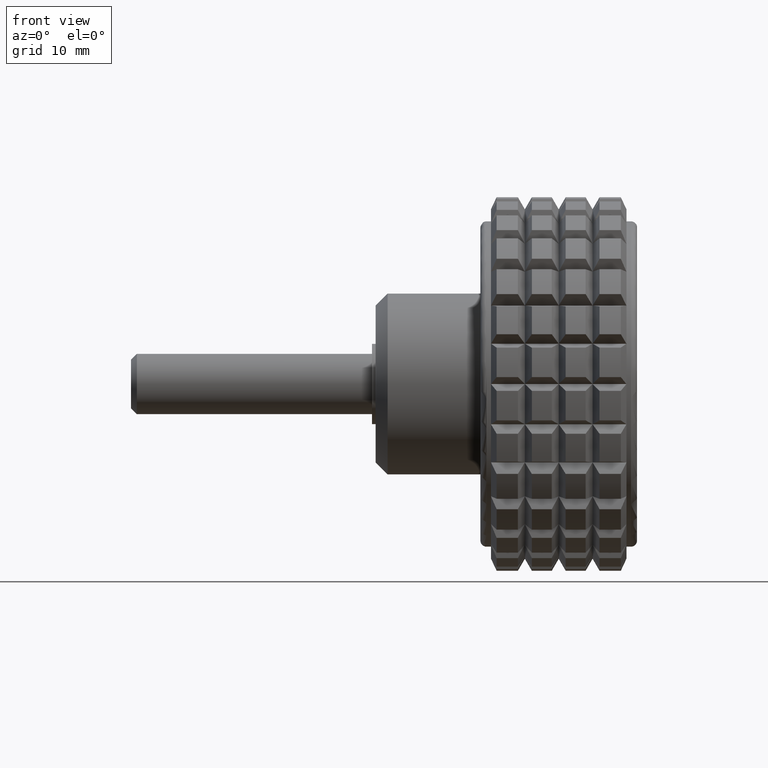
[diagram: clean part render]
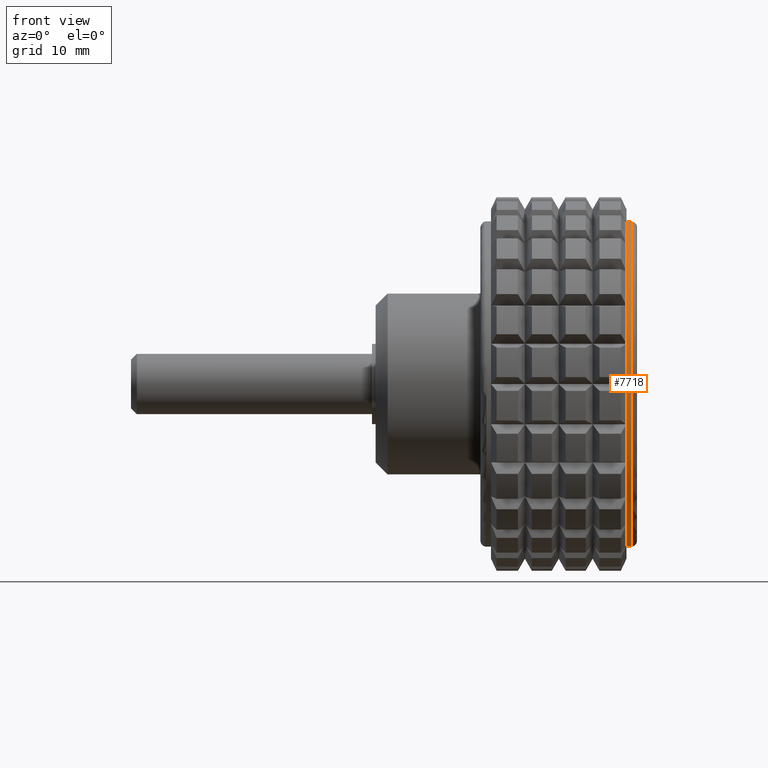
[diagram: same view with one face highlighted and labeled with its STEP entity id]
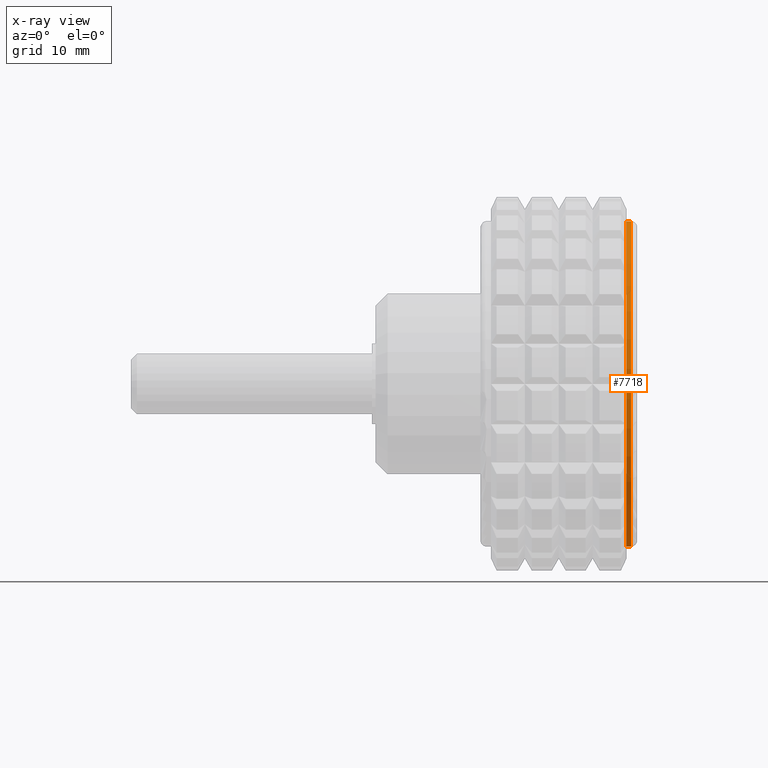
[diagram: x-ray of the same camera — body ghosted, the highlighted face saturated]
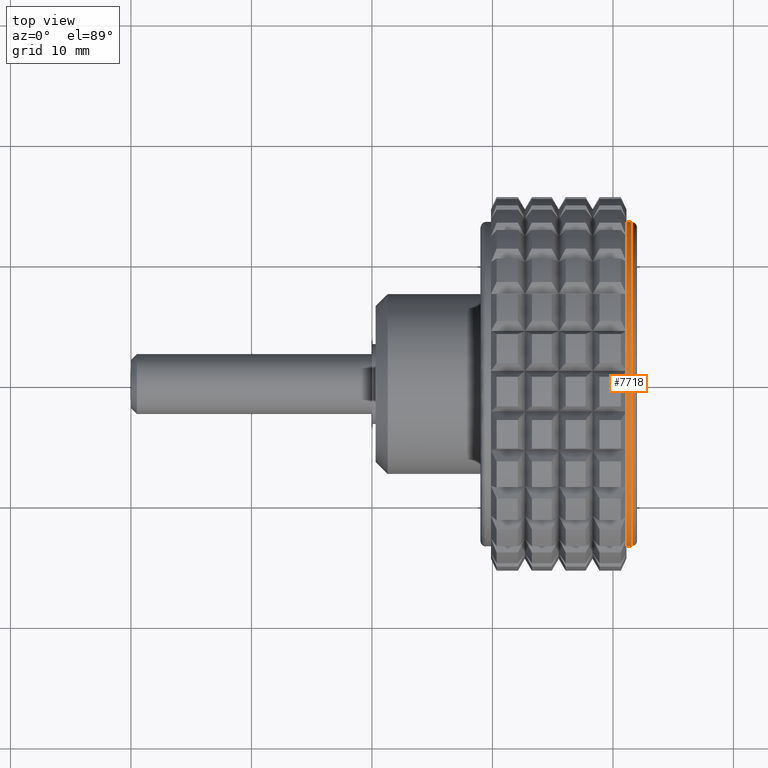
[diagram: same view with one face highlighted and labeled with its STEP entity id]
A machine part, front view. The second image highlights one B-rep face of the part: STEP entity #7718.
The next image is the same camera in x-ray: the body ghosted, the highlighted face saturated — about 0% of this face is hidden behind the body in this view.
A second angle (top view) of the same face is appended — the face is thin or edge-on in the first view.
In plain terms, the highlighted cylindrical surface (bore or boss wall) has radius 13.5 mm, axis along (-1, 0, 0).
Its self-contained STEP definition (entity closure, byte-faithful):
#141=CYLINDRICAL_SURFACE('',#8641,13.5);
#1449=FACE_BOUND('',#2578,.T.);
#2010=FACE_OUTER_BOUND('',#2577,.T.);
#2577=EDGE_LOOP('',(#6913));
#2578=EDGE_LOOP('',(#6914));
#2713=CIRCLE('',#7998,13.5);
#2967=CIRCLE('',#8642,13.5);
#3347=VERTEX_POINT('',#12611);
#3554=VERTEX_POINT('',#14395);
#4091=EDGE_CURVE('',#3347,#3347,#2713,.T.);
#4681=EDGE_CURVE('',#3554,#3554,#2967,.T.);
#6913=ORIENTED_EDGE('',*,*,#4681,.F.);
#6914=ORIENTED_EDGE('',*,*,#4091,.T.);
#7718=ADVANCED_FACE('',(#2010,#1449),#141,.T.);
#7998=AXIS2_PLACEMENT_3D('',#12612,#9382,#9383);
#8641=AXIS2_PLACEMENT_3D('',#14394,#10805,#10806);
#8642=AXIS2_PLACEMENT_3D('',#14396,#10807,#10808);
#9382=DIRECTION('center_axis',(1.,0.,0.));
#9383=DIRECTION('ref_axis',(0.,0.,-1.));
#10805=DIRECTION('center_axis',(-1.,0.,0.));
#10806=DIRECTION('ref_axis',(0.,0.,-1.));
#10807=DIRECTION('center_axis',(1.,0.,0.));
#10808=DIRECTION('ref_axis',(0.,0.,-1.));
#12611=CARTESIAN_POINT('',(21.12,0.,-13.5));
#12612=CARTESIAN_POINT('Origin',(21.12,0.,0.));
#14394=CARTESIAN_POINT('Origin',(22.,0.,0.));
#14395=CARTESIAN_POINT('',(21.5,0.,-13.5));
#14396=CARTESIAN_POINT('Origin',(21.5,0.,0.));